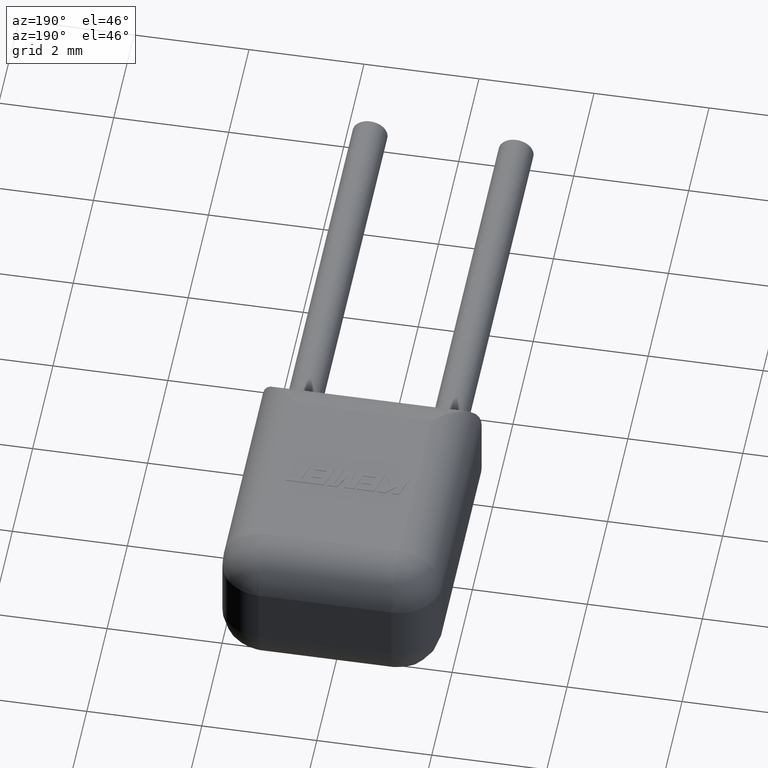
[diagram: clean part render]
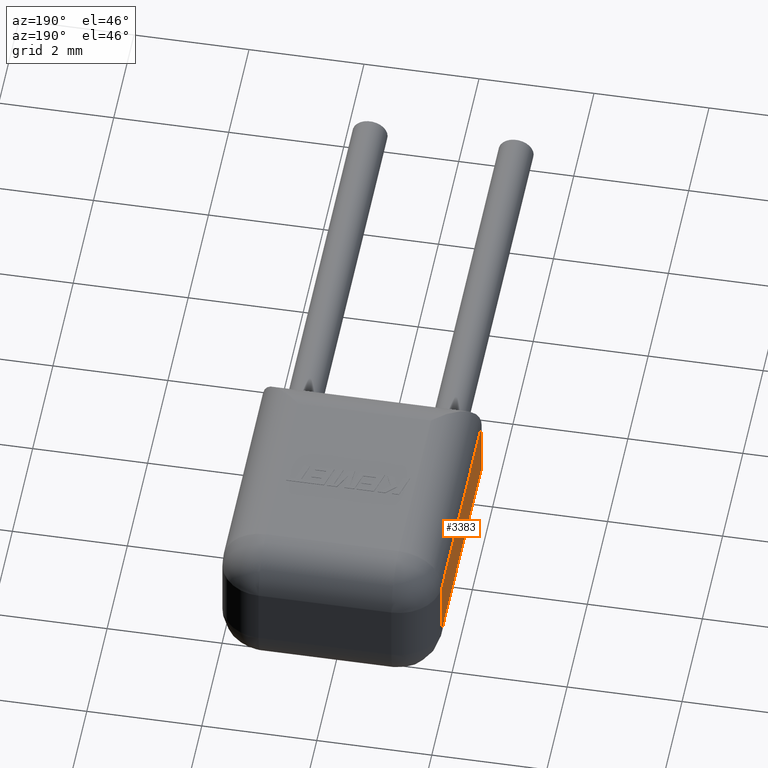
[diagram: same view with one face highlighted and labeled with its STEP entity id]
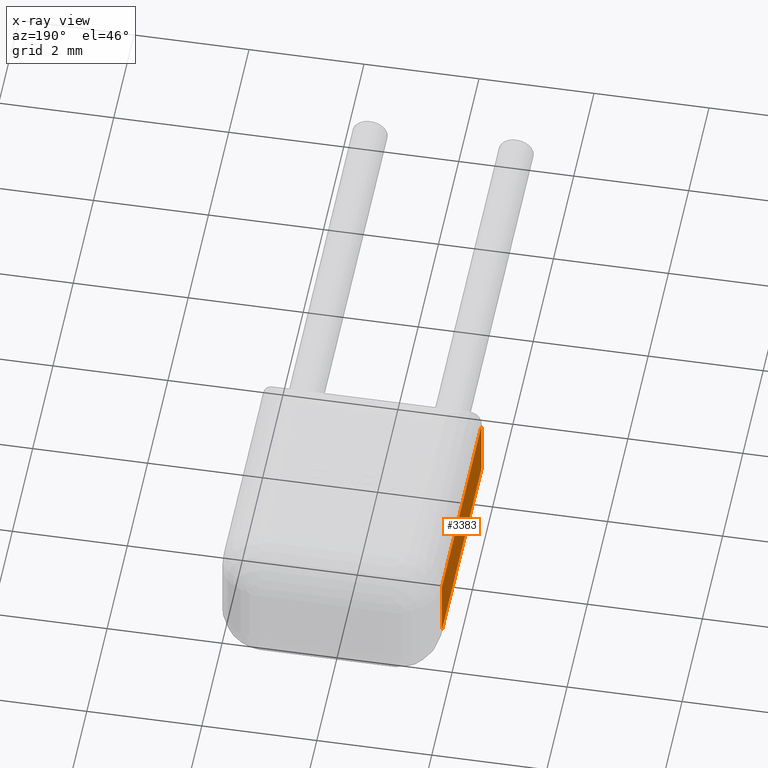
[diagram: x-ray of the same camera — body ghosted, the highlighted face saturated]
A machine part, auxiliary view. The second image highlights one B-rep face of the part: STEP entity #3383.
The next image is the same camera in x-ray: the body ghosted, the highlighted face saturated — about 0% of this face is hidden behind the body in this view.
In plain terms, the highlighted planar face has unit normal (1, 0, 0).
Its self-contained STEP definition (entity closure, byte-faithful):
#122 = VERTEX_POINT ( 'NONE', #2117 ) ;
#347 = CARTESIAN_POINT ( 'NONE',  ( -3.810000000000000100, 3.910000000000000100, 2.540000000000000000 ) ) ;
#427 = EDGE_LOOP ( 'NONE', ( #2569, #1935, #1011, #1561 ) ) ;
#670 = PLANE ( 'NONE',  #3480 ) ;
#778 = VERTEX_POINT ( 'NONE', #2110 ) ;
#897 = DIRECTION ( 'NONE',  ( -0.0000000000000000000, -0.0000000000000000000, -1.000000000000000000 ) ) ;
#997 = CARTESIAN_POINT ( 'NONE',  ( -3.810000000000000100, -4.665904304751415500E-016, 0.7500000000000000000 ) ) ;
#1011 = ORIENTED_EDGE ( 'NONE', *, *, #1039, .T. ) ;
#1039 = EDGE_CURVE ( 'NONE', #122, #778, #3159, .T. ) ;
#1068 = CARTESIAN_POINT ( 'NONE',  ( -3.810000000000000100, -4.665904304751415500E-016, 0.7500000000000000000 ) ) ;
#1138 = VERTEX_POINT ( 'NONE', #997 ) ;
#1554 = DIRECTION ( 'NONE',  ( 1.000000000000000000, 0.0000000000000000000, 0.0000000000000000000 ) ) ;
#1561 = ORIENTED_EDGE ( 'NONE', *, *, #1846, .T. ) ;
#1837 = CARTESIAN_POINT ( 'NONE',  ( -3.810000000000000100, -4.665904304751415500E-016, 2.540000000000000000 ) ) ;
#1846 = EDGE_CURVE ( 'NONE', #778, #1138, #2757, .T. ) ;
#1877 = CARTESIAN_POINT ( 'NONE',  ( -3.810000000000000100, -4.665904304751415500E-016, 1.790000000000000000 ) ) ;
#1935 = ORIENTED_EDGE ( 'NONE', *, *, #2874, .T. ) ;
#2033 = CARTESIAN_POINT ( 'NONE',  ( -3.810000000000000100, -4.665904304751415500E-016, 2.540000000000000000 ) ) ;
#2052 = VECTOR ( 'NONE', #2394, 1000.000000000000000 ) ;
#2110 = CARTESIAN_POINT ( 'NONE',  ( -3.810000000000000100, 3.910000000000000100, 0.7500000000000000000 ) ) ;
#2117 = CARTESIAN_POINT ( 'NONE',  ( -3.810000000000000100, 3.910000000000000100, 1.790000000000000000 ) ) ;
#2161 = LINE ( 'NONE', #2033, #2516 ) ;
#2394 = DIRECTION ( 'NONE',  ( 0.0000000000000000000, 0.0000000000000000000, -1.000000000000000000 ) ) ;
#2516 = VECTOR ( 'NONE', #897, 1000.000000000000000 ) ;
#2569 = ORIENTED_EDGE ( 'NONE', *, *, #2714, .F. ) ;
#2600 = VECTOR ( 'NONE', #3009, 1000.000000000000000 ) ;
#2714 = EDGE_CURVE ( 'NONE', #2945, #1138, #2161, .T. ) ;
#2715 = CARTESIAN_POINT ( 'NONE',  ( -3.810000000000000100, -4.665904304751415500E-016, 1.790000000000000000 ) ) ;
#2757 = LINE ( 'NONE', #1068, #3670 ) ;
#2874 = EDGE_CURVE ( 'NONE', #2945, #122, #3339, .T. ) ;
#2945 = VERTEX_POINT ( 'NONE', #1877 ) ;
#3009 = DIRECTION ( 'NONE',  ( -0.0000000000000000000, 1.000000000000000000, -0.0000000000000000000 ) ) ;
#3159 = LINE ( 'NONE', #347, #2052 ) ;
#3339 = LINE ( 'NONE', #2715, #2600 ) ;
#3383 = ADVANCED_FACE ( 'NONE', ( #3536 ), #670, .F. ) ;
#3480 = AXIS2_PLACEMENT_3D ( 'NONE', #1837, #1554, #3526 ) ;
#3526 = DIRECTION ( 'NONE',  ( 0.0000000000000000000, 0.0000000000000000000, -1.000000000000000000 ) ) ;
#3536 = FACE_OUTER_BOUND ( 'NONE', #427, .T. ) ;
#3634 = DIRECTION ( 'NONE',  ( 0.0000000000000000000, -1.000000000000000000, 0.0000000000000000000 ) ) ;
#3670 = VECTOR ( 'NONE', #3634, 1000.000000000000000 ) ;